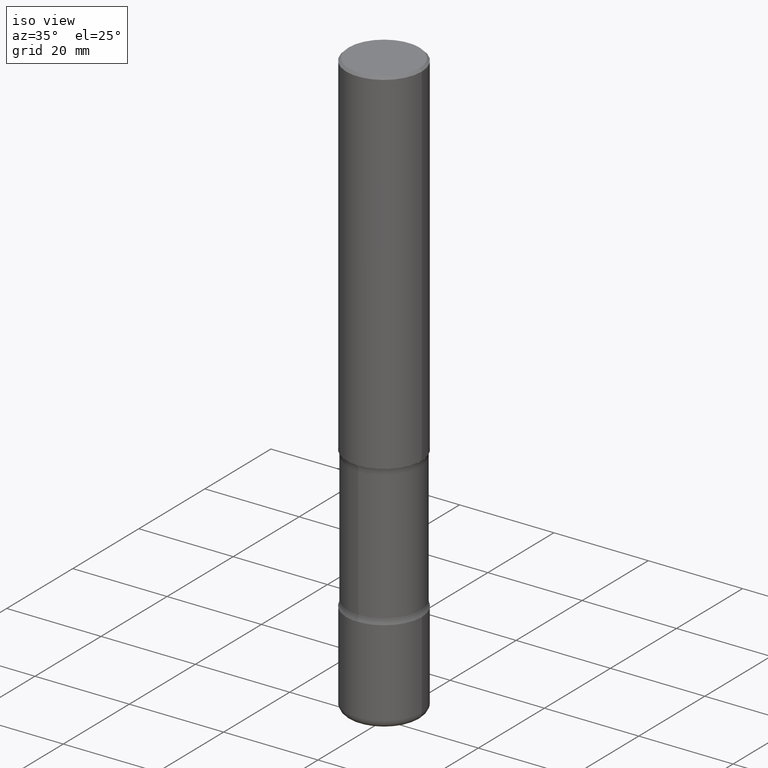
[diagram: clean part render]
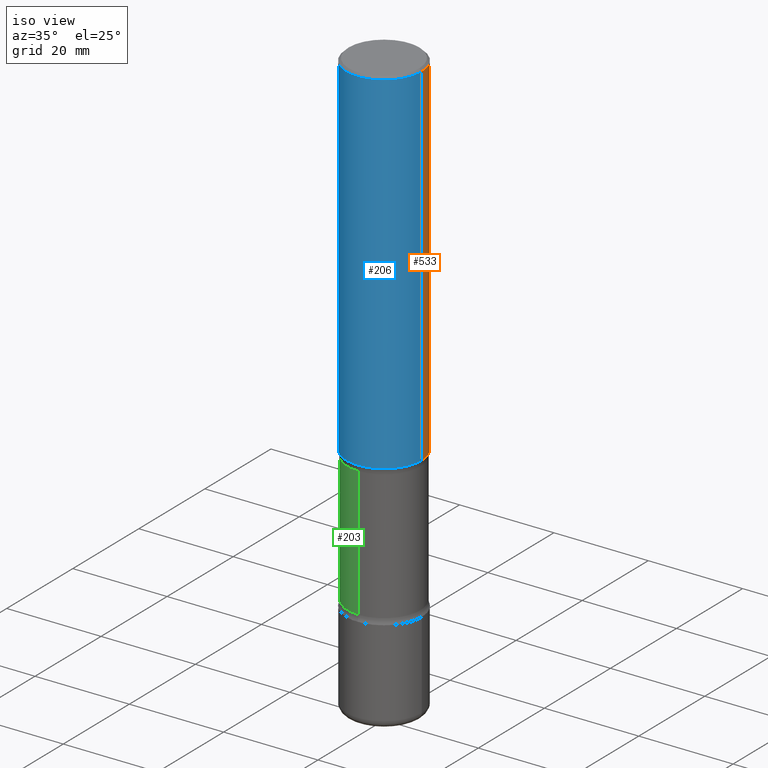
[diagram: same view with three faces highlighted in distinct colors, each labeled with its STEP entity id]
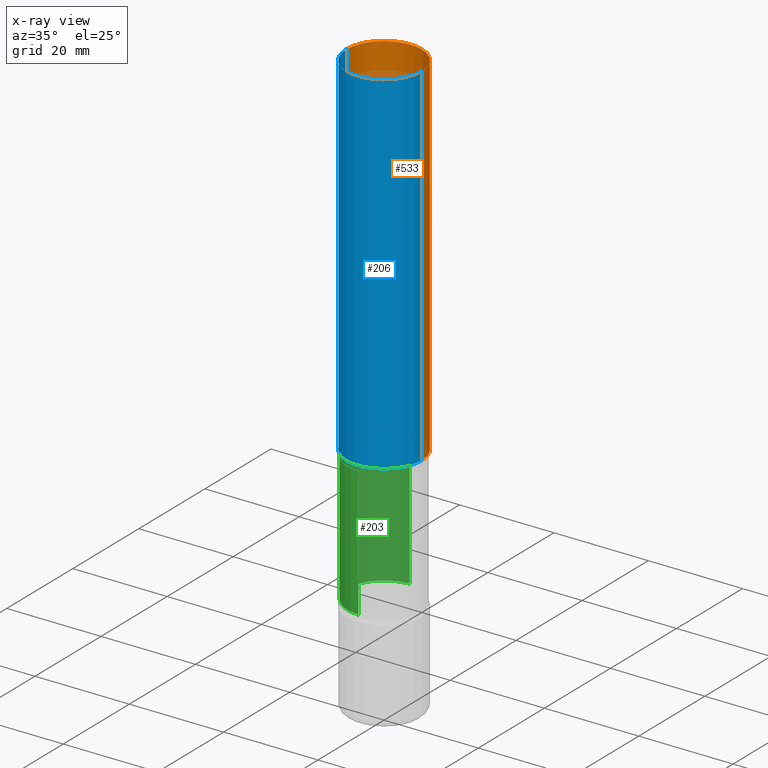
[diagram: x-ray of the same camera — body ghosted, the three highlighted faces saturated]
A machine part, iso view with three faces highlighted in distinct colors.
The next image is the same camera in x-ray (body ghosted, the three faces saturated) — at least one of them is partly hidden behind the body in this view.
Their STEP definitions:

[orange] entity #533 — the highlighted cylindrical surface (partial cylindrical patch) has radius 7.9997 mm, axis along (-0, 0, 1).
#3 = ORIENTED_EDGE ( 'NONE', *, *, #88, .T. ) ;
#24 = CARTESIAN_POINT ( 'NONE',  ( -0.3149500000000002298, -2.951883515780010590E-15, -2.952799999999999869 ) ) ;
#42 = DIRECTION ( 'NONE',  ( 1.000000000000000000, -6.982962677686264344E-15, 0.000000000000000000 ) ) ;
#64 = VERTEX_POINT ( 'NONE', #394 ) ;
#77 = LINE ( 'NONE', #559, #101 ) ;
#88 = EDGE_CURVE ( 'NONE', #368, #151, #164, .T. ) ;
#101 = VECTOR ( 'NONE', #198, 39.37007874015748143 ) ;
#125 = CARTESIAN_POINT ( 'NONE',  ( 0.000000000000000000, 0.000000000000000000, 0.000000000000000000 ) ) ;
#134 = AXIS2_PLACEMENT_3D ( 'NONE', #125, #338, #469 ) ;
#151 = VERTEX_POINT ( 'NONE', #260 ) ;
#161 = EDGE_LOOP ( 'NONE', ( #222, #3, #464, #477 ) ) ;
#164 = LINE ( 'NONE', #247, #261 ) ;
#174 = DIRECTION ( 'NONE',  ( -2.445468806185136877E-29, 3.491481338843145188E-15, 1.000000000000000000 ) ) ;
#176 = AXIS2_PLACEMENT_3D ( 'NONE', #478, #528, #397 ) ;
#186 = EDGE_CURVE ( 'NONE', #64, #151, #207, .T. ) ;
#198 = DIRECTION ( 'NONE',  ( -2.445468806185136877E-29, 3.491481338843145188E-15, 1.000000000000000000 ) ) ;
#207 = CIRCLE ( 'NONE', #176, 0.3149499999999998967 ) ;
#222 = ORIENTED_EDGE ( 'NONE', *, *, #292, .T. ) ;
#229 = AXIS2_PLACEMENT_3D ( 'NONE', #245, #401, #42 ) ;
#245 = CARTESIAN_POINT ( 'NONE',  ( 7.220980290903470182E-29, -1.030964609733603853E-14, -2.952799999999999869 ) ) ;
#247 = CARTESIAN_POINT ( 'NONE',  ( -0.3149500000000000077, 2.237854346276435590E-15, -1.549218606675782676E-29 ) ) ;
#260 = CARTESIAN_POINT ( 'NONE',  ( -0.3149499999999998967, 2.129454468560425784E-15, -0.02000000000000006981 ) ) ;
#261 = VECTOR ( 'NONE', #174, 39.37007874015748143 ) ;
#292 = EDGE_CURVE ( 'NONE', #525, #368, #550, .T. ) ;
#298 = CARTESIAN_POINT ( 'NONE',  ( 0.3149500000000002298, -1.250893019267332998E-14, -2.952799999999999869 ) ) ;
#338 = DIRECTION ( 'NONE',  ( -2.445468806185136597E-29, 3.491481338843145583E-15, 1.000000000000000000 ) ) ;
#368 = VERTEX_POINT ( 'NONE', #24 ) ;
#386 = CYLINDRICAL_SURFACE ( 'NONE', #134, 0.3149500000000000077 ) ;
#394 = CARTESIAN_POINT ( 'NONE',  ( 0.3149499999999998967, -2.230543471175006266E-15, -0.02000000000000006981 ) ) ;
#397 = DIRECTION ( 'NONE',  ( 1.000000000000000000, -6.982962677686265922E-15, 0.000000000000000000 ) ) ;
#401 = DIRECTION ( 'NONE',  ( -2.445468806185136597E-29, 3.491481338843145583E-15, 1.000000000000000000 ) ) ;
#434 = FACE_OUTER_BOUND ( 'NONE', #161, .T. ) ;
#464 = ORIENTED_EDGE ( 'NONE', *, *, #186, .F. ) ;
#469 = DIRECTION ( 'NONE',  ( 1.000000000000000000, -6.982962677686266711E-15, 4.876176775795936353E-29 ) ) ;
#477 = ORIENTED_EDGE ( 'NONE', *, *, #513, .F. ) ;
#478 = CARTESIAN_POINT ( 'NONE',  ( 4.890937612370289799E-31, -6.982962677686315028E-17, -0.02000000000000006981 ) ) ;
#513 = EDGE_CURVE ( 'NONE', #525, #64, #77, .T. ) ;
#525 = VERTEX_POINT ( 'NONE', #298 ) ;
#528 = DIRECTION ( 'NONE',  ( -2.445468806185136597E-29, 3.491481338843145583E-15, 1.000000000000000000 ) ) ;
#533 = ADVANCED_FACE ( 'NONE', ( #434 ), #386, .T. ) ;
#550 = CIRCLE ( 'NONE', #229, 0.3149500000000002298 ) ;
#559 = CARTESIAN_POINT ( 'NONE',  ( 0.3149500000000000077, -2.199284095337289871E-15, 1.535751875536930130E-29 ) ) ;

[blue] entity #206 — the highlighted cylindrical surface (partial cylindrical patch) has radius 7.9997 mm, axis along (-0, 0, 1).
#7 = EDGE_CURVE ( 'NONE', #151, #64, #279, .T. ) ;
#24 = CARTESIAN_POINT ( 'NONE',  ( -0.3149500000000002298, -2.951883515780010590E-15, -2.952799999999999869 ) ) ;
#27 = AXIS2_PLACEMENT_3D ( 'NONE', #71, #412, #536 ) ;
#64 = VERTEX_POINT ( 'NONE', #394 ) ;
#71 = CARTESIAN_POINT ( 'NONE',  ( 0.000000000000000000, 0.000000000000000000, 0.000000000000000000 ) ) ;
#77 = LINE ( 'NONE', #559, #101 ) ;
#88 = EDGE_CURVE ( 'NONE', #368, #151, #164, .T. ) ;
#101 = VECTOR ( 'NONE', #198, 39.37007874015748143 ) ;
#114 = DIRECTION ( 'NONE',  ( -2.445468806185136597E-29, 3.491481338843145583E-15, 1.000000000000000000 ) ) ;
#151 = VERTEX_POINT ( 'NONE', #260 ) ;
#155 = FACE_OUTER_BOUND ( 'NONE', #381, .T. ) ;
#164 = LINE ( 'NONE', #247, #261 ) ;
#174 = DIRECTION ( 'NONE',  ( -2.445468806185136877E-29, 3.491481338843145188E-15, 1.000000000000000000 ) ) ;
#194 = ORIENTED_EDGE ( 'NONE', *, *, #7, .F. ) ;
#198 = DIRECTION ( 'NONE',  ( -2.445468806185136877E-29, 3.491481338843145188E-15, 1.000000000000000000 ) ) ;
#206 = ADVANCED_FACE ( 'NONE', ( #155 ), #545, .T. ) ;
#247 = CARTESIAN_POINT ( 'NONE',  ( -0.3149500000000000077, 2.237854346276435590E-15, -1.549218606675782676E-29 ) ) ;
#248 = EDGE_CURVE ( 'NONE', #368, #525, #389, .T. ) ;
#260 = CARTESIAN_POINT ( 'NONE',  ( -0.3149499999999998967, 2.129454468560425784E-15, -0.02000000000000006981 ) ) ;
#261 = VECTOR ( 'NONE', #174, 39.37007874015748143 ) ;
#279 = CIRCLE ( 'NONE', #388, 0.3149499999999998967 ) ;
#286 = ORIENTED_EDGE ( 'NONE', *, *, #88, .F. ) ;
#298 = CARTESIAN_POINT ( 'NONE',  ( 0.3149500000000002298, -1.250893019267332998E-14, -2.952799999999999869 ) ) ;
#304 = AXIS2_PLACEMENT_3D ( 'NONE', #540, #114, #358 ) ;
#358 = DIRECTION ( 'NONE',  ( 1.000000000000000000, -6.982962677686264344E-15, 0.000000000000000000 ) ) ;
#368 = VERTEX_POINT ( 'NONE', #24 ) ;
#381 = EDGE_LOOP ( 'NONE', ( #286, #458, #453, #194 ) ) ;
#387 = DIRECTION ( 'NONE',  ( -2.445468806185136597E-29, 3.491481338843145583E-15, 1.000000000000000000 ) ) ;
#388 = AXIS2_PLACEMENT_3D ( 'NONE', #391, #387, #519 ) ;
#389 = CIRCLE ( 'NONE', #304, 0.3149500000000002298 ) ;
#391 = CARTESIAN_POINT ( 'NONE',  ( 4.890937612370289799E-31, -6.982962677686315028E-17, -0.02000000000000006981 ) ) ;
#394 = CARTESIAN_POINT ( 'NONE',  ( 0.3149499999999998967, -2.230543471175006266E-15, -0.02000000000000006981 ) ) ;
#412 = DIRECTION ( 'NONE',  ( -2.445468806185136597E-29, 3.491481338843145583E-15, 1.000000000000000000 ) ) ;
#453 = ORIENTED_EDGE ( 'NONE', *, *, #513, .T. ) ;
#458 = ORIENTED_EDGE ( 'NONE', *, *, #248, .T. ) ;
#513 = EDGE_CURVE ( 'NONE', #525, #64, #77, .T. ) ;
#519 = DIRECTION ( 'NONE',  ( 1.000000000000000000, -6.982962677686265922E-15, 0.000000000000000000 ) ) ;
#525 = VERTEX_POINT ( 'NONE', #298 ) ;
#536 = DIRECTION ( 'NONE',  ( 1.000000000000000000, -6.982962677686266711E-15, 4.876176775795936353E-29 ) ) ;
#540 = CARTESIAN_POINT ( 'NONE',  ( 7.220980290903470182E-29, -1.030964609733603853E-14, -2.952799999999999869 ) ) ;
#545 = CYLINDRICAL_SURFACE ( 'NONE', #27, 0.3149500000000000077 ) ;
#559 = CARTESIAN_POINT ( 'NONE',  ( 0.3149500000000000077, -2.199284095337289871E-15, 1.535751875536930130E-29 ) ) ;

[green] entity #203 — the highlighted cylindrical surface (partial cylindrical patch) has radius 7.747 mm, axis along (0, -0, -1).
#13 = CARTESIAN_POINT ( 'NONE',  ( 7.202412656765479231E-29, -1.067802569216027239E-14, -3.001672256956273710 ) ) ;
#21 = CARTESIAN_POINT ( 'NONE',  ( 2.129803616694432752E-15, 0.3049999999999830069, -4.921299999999999564 ) ) ;
#29 = EDGE_CURVE ( 'NONE', #455, #424, #147, .T. ) ;
#36 = ORIENTED_EDGE ( 'NONE', *, *, #173, .F. ) ;
#61 = CARTESIAN_POINT ( 'NONE',  ( -2.126582866859130004E-15, -0.3050000000000142597, -4.085027743043725401 ) ) ;
#69 = VERTEX_POINT ( 'NONE', #512 ) ;
#83 = DIRECTION ( 'NONE',  ( 6.982962677686266711E-15, 1.000000000000000000, -3.582751467100673306E-15 ) ) ;
#96 = CARTESIAN_POINT ( 'NONE',  ( -2.092451889320195532E-15, -0.3050000000000170908, -4.921299999999997787 ) ) ;
#100 = CARTESIAN_POINT ( 'NONE',  ( 2.129803616694410664E-15, 0.3049999999999857270, -4.085027743043728066 ) ) ;
#140 = LINE ( 'NONE', #96, #328 ) ;
#147 = CIRCLE ( 'NONE', #183, 0.3049999999999999933 ) ;
#148 = AXIS2_PLACEMENT_3D ( 'NONE', #13, #149, #281 ) ;
#149 = DIRECTION ( 'NONE',  ( 2.567425907890858451E-29, -3.316831827833398617E-15, -1.000000000000000000 ) ) ;
#153 = VERTEX_POINT ( 'NONE', #172 ) ;
#157 = AXIS2_PLACEMENT_3D ( 'NONE', #314, #188, #369 ) ;
#166 = CIRCLE ( 'NONE', #148, 0.3050000000000001044 ) ;
#172 = CARTESIAN_POINT ( 'NONE',  ( -2.126582866859160770E-15, -0.3050000000000108180, -3.001672256956272378 ) ) ;
#173 = EDGE_CURVE ( 'NONE', #153, #455, #140, .T. ) ;
#183 = AXIS2_PLACEMENT_3D ( 'NONE', #252, #433, #83 ) ;
#188 = DIRECTION ( 'NONE',  ( 2.567425907890858451E-29, -3.316831827833398617E-15, -1.000000000000000000 ) ) ;
#203 = ADVANCED_FACE ( 'NONE', ( #284 ), #462, .T. ) ;
#227 = ORIENTED_EDGE ( 'NONE', *, *, #372, .T. ) ;
#252 = CARTESIAN_POINT ( 'NONE',  ( 9.983847599202101310E-29, -1.427133364927305841E-14, -4.085027743043726289 ) ) ;
#281 = DIRECTION ( 'NONE',  ( 6.982962677686265133E-15, 1.000000000000000000, -3.582751467100671728E-15 ) ) ;
#284 = FACE_OUTER_BOUND ( 'NONE', #414, .T. ) ;
#312 = DIRECTION ( 'NONE',  ( 2.567425907890858451E-29, -3.316831827833398617E-15, -1.000000000000000000 ) ) ;
#314 = CARTESIAN_POINT ( 'NONE',  ( 1.213091465776199422E-28, -1.704510808787969270E-14, -4.921299999999998676 ) ) ;
#326 = DIRECTION ( 'NONE',  ( 2.567425907890858451E-29, -3.316831827833398617E-15, -1.000000000000000000 ) ) ;
#328 = VECTOR ( 'NONE', #312, 39.37007874015748143 ) ;
#346 = VECTOR ( 'NONE', #326, 39.37007874015748143 ) ;
#361 = LINE ( 'NONE', #21, #346 ) ;
#369 = DIRECTION ( 'NONE',  ( 6.982962677686265133E-15, 1.000000000000000000, -3.582751467100672517E-15 ) ) ;
#372 = EDGE_CURVE ( 'NONE', #153, #69, #166, .T. ) ;
#379 = ORIENTED_EDGE ( 'NONE', *, *, #454, .T. ) ;
#414 = EDGE_LOOP ( 'NONE', ( #36, #227, #379, #426 ) ) ;
#424 = VERTEX_POINT ( 'NONE', #100 ) ;
#426 = ORIENTED_EDGE ( 'NONE', *, *, #29, .F. ) ;
#433 = DIRECTION ( 'NONE',  ( 2.567425907890858451E-29, -3.316831827833398617E-15, -1.000000000000000000 ) ) ;
#454 = EDGE_CURVE ( 'NONE', #69, #424, #361, .T. ) ;
#455 = VERTEX_POINT ( 'NONE', #61 ) ;
#462 = CYLINDRICAL_SURFACE ( 'NONE', #157, 0.3050000000000000488 ) ;
#512 = CARTESIAN_POINT ( 'NONE',  ( 2.129803616694383843E-15, 0.3049999999999893907, -3.001672256956274598 ) ) ;